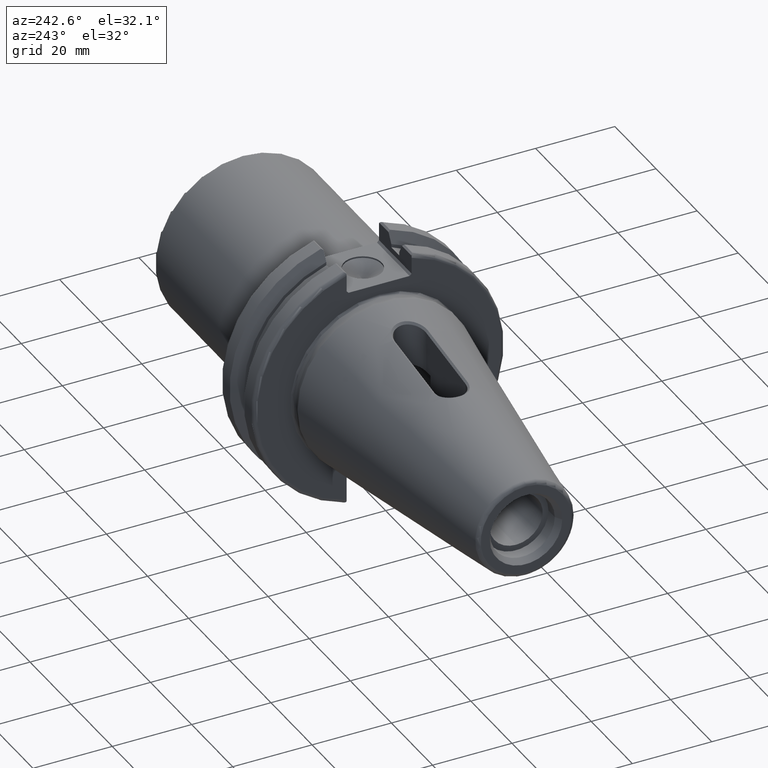
[diagram: clean part render]
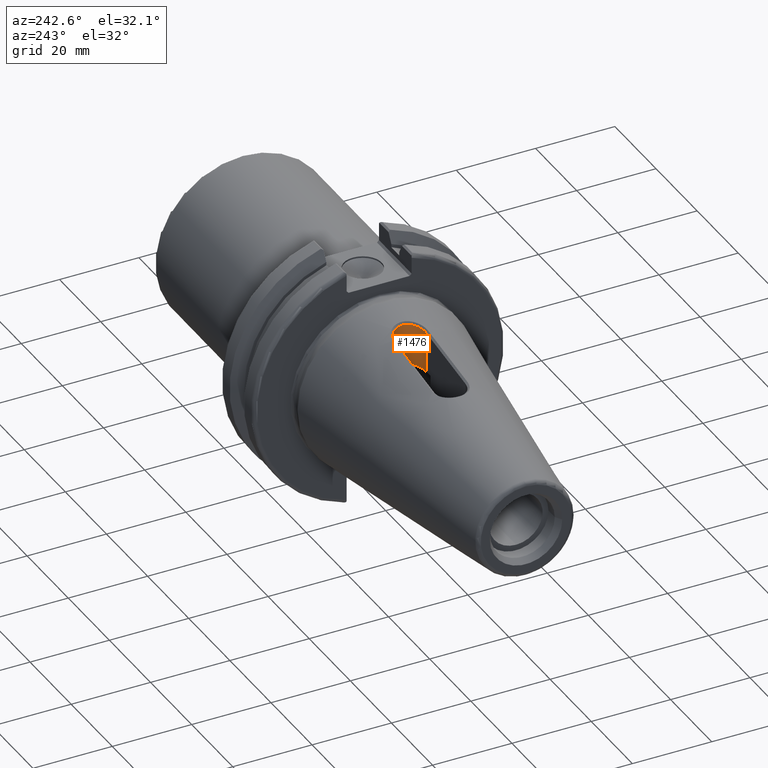
[diagram: same view with one face highlighted and labeled with its STEP entity id]
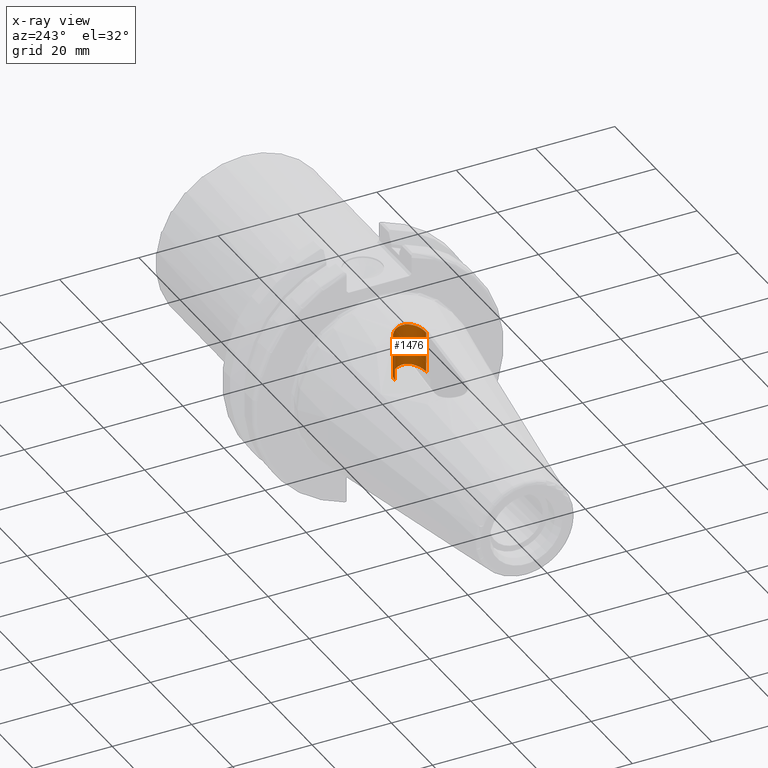
[diagram: x-ray of the same camera — body ghosted, the highlighted face saturated]
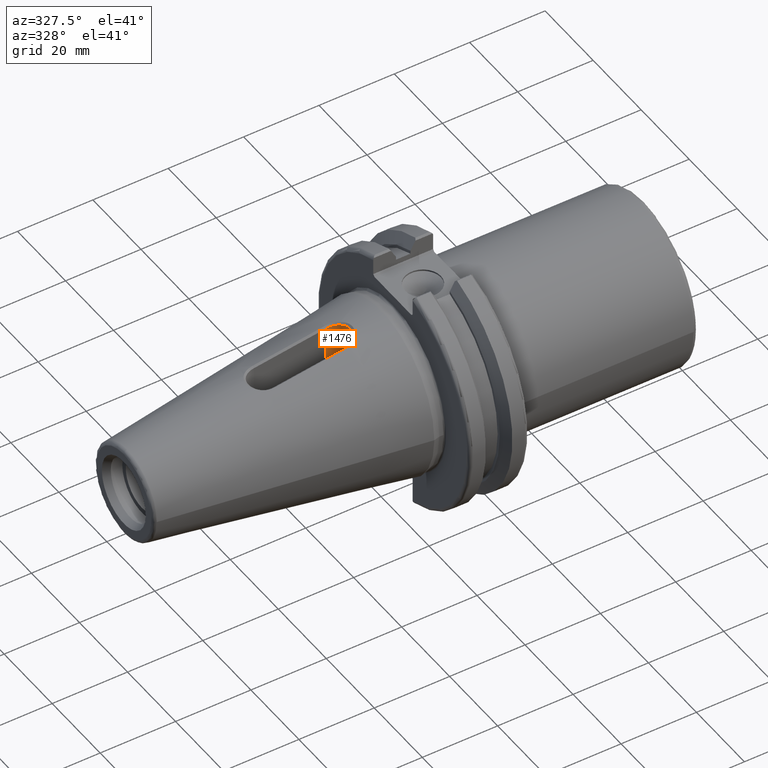
[diagram: same view with one face highlighted and labeled with its STEP entity id]
A machine part, auxiliary view. The second image highlights one B-rep face of the part: STEP entity #1476.
The next image is the same camera in x-ray: the body ghosted, the highlighted face saturated — about 0% of this face is hidden behind the body in this view.
A second angle (auxiliary view) of the same face is appended — the face is thin or edge-on in the first view.
In plain terms, the highlighted cylindrical surface (edge-blend (fillet) strip) has radius 3.95 mm, axis along (0, 0, 1).
Its self-contained STEP definition (entity closure, byte-faithful):
#77=B_SPLINE_CURVE_WITH_KNOTS('',3,(#2685,#2686,#2687,#2688,#2689,#2690,
#2691,#2692,#2693,#2694,#2695,#2696,#2697),.UNSPECIFIED.,.F.,.F.,(4,1,1,
1,1,1,1,1,1,1,4),(0.0111892826244674,0.183653931718104,0.356118580811741,
0.39923474308515,0.442350905358559,0.528583229905377,0.701047878999014,
0.873512528092651,0.959744852639469,1.04597717718629,1.21844182627992),
 .UNSPECIFIED.);
#78=B_SPLINE_CURVE_WITH_KNOTS('',3,(#2714,#2715,#2716,#2717),
 .UNSPECIFIED.,.F.,.F.,(4,4),(1.92422205495094,1.93110974223985),
 .UNSPECIFIED.);
#80=B_SPLINE_CURVE_WITH_KNOTS('',3,(#2758,#2759,#2760,#2761),
 .UNSPECIFIED.,.F.,.F.,(4,4),(-2.98747995085003E-15,0.00688768729034403),
 .UNSPECIFIED.);
#85=B_SPLINE_CURVE_WITH_KNOTS('',3,(#2848,#2849,#2850,#2851,#2852,#2853,
#2854,#2855,#2856,#2857,#2858,#2859,#2860,#2861,#2862,#2863,#2864,#2865),
 .UNSPECIFIED.,.F.,.F.,(4,2,2,2,2,2,2,2,4),(-1.20440588330577,-1.0537860419694,
-0.903166200633027,-0.752684571142955,-0.602202941652884,-0.451721312162813,
-0.301239682672742,-0.150619841336371,0.),.UNSPECIFIED.);
#106=CYLINDRICAL_SURFACE('',#1581,3.95);
#194=FACE_OUTER_BOUND('',#280,.T.);
#280=EDGE_LOOP('',(#1124,#1125,#1126,#1127,#1128,#1129));
#365=LINE('',#2791,#470);
#367=LINE('',#2815,#472);
#470=VECTOR('',#1750,10.);
#472=VECTOR('',#1756,10.);
#645=VERTEX_POINT('',#2601);
#647=VERTEX_POINT('',#2681);
#648=VERTEX_POINT('',#2683);
#649=VERTEX_POINT('',#2734);
#654=VERTEX_POINT('',#2789);
#656=VERTEX_POINT('',#2814);
#816=EDGE_CURVE('',#648,#647,#77,.T.);
#817=EDGE_CURVE('',#645,#648,#78,.T.);
#821=EDGE_CURVE('',#647,#649,#80,.T.);
#827=EDGE_CURVE('',#654,#645,#365,.T.);
#830=EDGE_CURVE('',#656,#649,#367,.T.);
#838=EDGE_CURVE('',#656,#654,#85,.T.);
#1124=ORIENTED_EDGE('',*,*,#817,.F.);
#1125=ORIENTED_EDGE('',*,*,#827,.F.);
#1126=ORIENTED_EDGE('',*,*,#838,.F.);
#1127=ORIENTED_EDGE('',*,*,#830,.T.);
#1128=ORIENTED_EDGE('',*,*,#821,.F.);
#1129=ORIENTED_EDGE('',*,*,#816,.F.);
#1476=ADVANCED_FACE('',(#194),#106,.F.);
#1581=AXIS2_PLACEMENT_3D('',#2847,#1764,#1765);
#1750=DIRECTION('',(0.,0.,1.));
#1756=DIRECTION('',(0.,0.,1.));
#1764=DIRECTION('center_axis',(0.,0.,1.));
#1765=DIRECTION('ref_axis',(0.,-1.,0.));
#2601=CARTESIAN_POINT('',(-12.0999999999973,3.95,19.5700185894638));
#2681=CARTESIAN_POINT('',(-12.0264928568056,-3.94931597873598,19.5809444943961));
#2683=CARTESIAN_POINT('',(-12.0264928568056,3.94931597873599,19.5809444943961));
#2685=CARTESIAN_POINT('Ctrl Pts',(-12.0264928568056,3.94931597873599,19.5809444943961));
#2686=CARTESIAN_POINT('Ctrl Pts',(-11.4390633936934,3.93838237355117,19.6682688926734));
#2687=CARTESIAN_POINT('Ctrl Pts',(-10.2061117026698,3.62522817713744,19.910736518366));
#2688=CARTESIAN_POINT('Ctrl Pts',(-9.20481714104233,2.76355788523311,20.1961164958143));
#2689=CARTESIAN_POINT('Ctrl Pts',(-8.71652173807688,2.05323454205101,20.3476204645245));
#2690=CARTESIAN_POINT('Ctrl Pts',(-8.43841711842245,1.53810996456578,20.4375598503369));
#2691=CARTESIAN_POINT('Ctrl Pts',(-8.11719871071841,0.556271383846793,20.5474673963828));
#2692=CARTESIAN_POINT('Ctrl Pts',(-8.10752463257279,-0.842096766492664,
20.5507642476893));
#2693=CARTESIAN_POINT('Ctrl Pts',(-8.75558478115371,-2.23658563471951,20.3297387504241));
#2694=CARTESIAN_POINT('Ctrl Pts',(-9.53113460258356,-3.03745112509403,20.1037654885105));
#2695=CARTESIAN_POINT('Ctrl Pts',(-10.5165411951307,-3.71076622664493,19.849024614565));
#2696=CARTESIAN_POINT('Ctrl Pts',(-11.4390633936934,-3.93838237355117,19.6682688926734));
#2697=CARTESIAN_POINT('Ctrl Pts',(-12.0264928568056,-3.94931597873598,19.5809444943961));
#2714=CARTESIAN_POINT('Ctrl Pts',(-12.0999999999999,3.95,19.570018589463));
#2715=CARTESIAN_POINT('Ctrl Pts',(-12.075504508503,3.95,19.5736594130601));
#2716=CARTESIAN_POINT('Ctrl Pts',(-12.0510020834305,3.94977215981666,19.5773010723316));
#2717=CARTESIAN_POINT('Ctrl Pts',(-12.0264928568056,3.94931597873599,19.5809444943961));
#2734=CARTESIAN_POINT('',(-12.0999999999973,-3.95,19.5700185894638));
#2758=CARTESIAN_POINT('Ctrl Pts',(-12.0264928568056,-3.94931597873598,19.5809444943961));
#2759=CARTESIAN_POINT('Ctrl Pts',(-12.0510020834295,-3.94977215981664,19.5773010723317));
#2760=CARTESIAN_POINT('Ctrl Pts',(-12.0755045085011,-3.94999999999998,19.5736594130604));
#2761=CARTESIAN_POINT('Ctrl Pts',(-12.0999999999972,-3.95,19.5700185894634));
#2789=CARTESIAN_POINT('',(-12.1,3.95,9.29556345790829));
#2791=CARTESIAN_POINT('',(-12.1,3.95,0.));
#2814=CARTESIAN_POINT('',(-12.1,-3.95,9.29556345790829));
#2815=CARTESIAN_POINT('',(-12.1,-3.95,0.));
#2847=CARTESIAN_POINT('Origin',(-12.1,3.69769289381434E-15,0.));
#2848=CARTESIAN_POINT('Ctrl Pts',(-12.1,-3.95,9.29556345790829));
#2849=CARTESIAN_POINT('Ctrl Pts',(-11.5979338622121,-3.95,9.29556345790829));
#2850=CARTESIAN_POINT('Ctrl Pts',(-11.0666225867398,-3.84855949380958,9.34053842740044));
#2851=CARTESIAN_POINT('Ctrl Pts',(-10.0953378760008,-3.44392401800322,9.49718129208766));
#2852=CARTESIAN_POINT('Ctrl Pts',(-9.65481369175727,-3.14095726313098,9.60601028380052));
#2853=CARTESIAN_POINT('Ctrl Pts',(-8.95936196369673,-2.44550553507044,9.80613626197477));
#2854=CARTESIAN_POINT('Ctrl Pts',(-8.65615255724155,-2.00485957694469,9.9112097548592));
#2855=CARTESIAN_POINT('Ctrl Pts',(-8.25133207775341,-1.03310349905956,10.0590376233991));
#2856=CARTESIAN_POINT('Ctrl Pts',(-8.15000000000001,-0.501605431633567,
10.1));
#2857=CARTESIAN_POINT('Ctrl Pts',(-8.15000000000001,0.501605431633574,10.1));
#2858=CARTESIAN_POINT('Ctrl Pts',(-8.25133207775341,1.03310349905956,10.0590376233991));
#2859=CARTESIAN_POINT('Ctrl Pts',(-8.65615255724155,2.0048595769447,9.9112097548592));
#2860=CARTESIAN_POINT('Ctrl Pts',(-8.95936196369673,2.44550553507045,9.80613626197477));
#2861=CARTESIAN_POINT('Ctrl Pts',(-9.65481369175727,3.14095726313098,9.60601028380052));
#2862=CARTESIAN_POINT('Ctrl Pts',(-10.0953378760008,3.44392401800323,9.49718129208765));
#2863=CARTESIAN_POINT('Ctrl Pts',(-11.0666225867398,3.84855949380959,9.34053842740044));
#2864=CARTESIAN_POINT('Ctrl Pts',(-11.5979338622121,3.95,9.29556345790829));
#2865=CARTESIAN_POINT('Ctrl Pts',(-12.1,3.95,9.29556345790829));